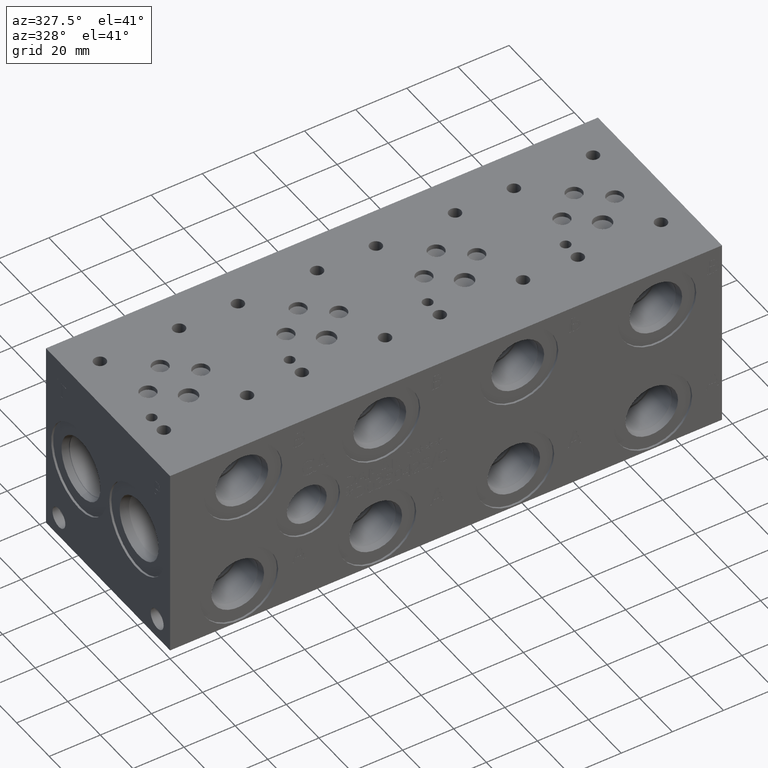
[diagram: clean part render]
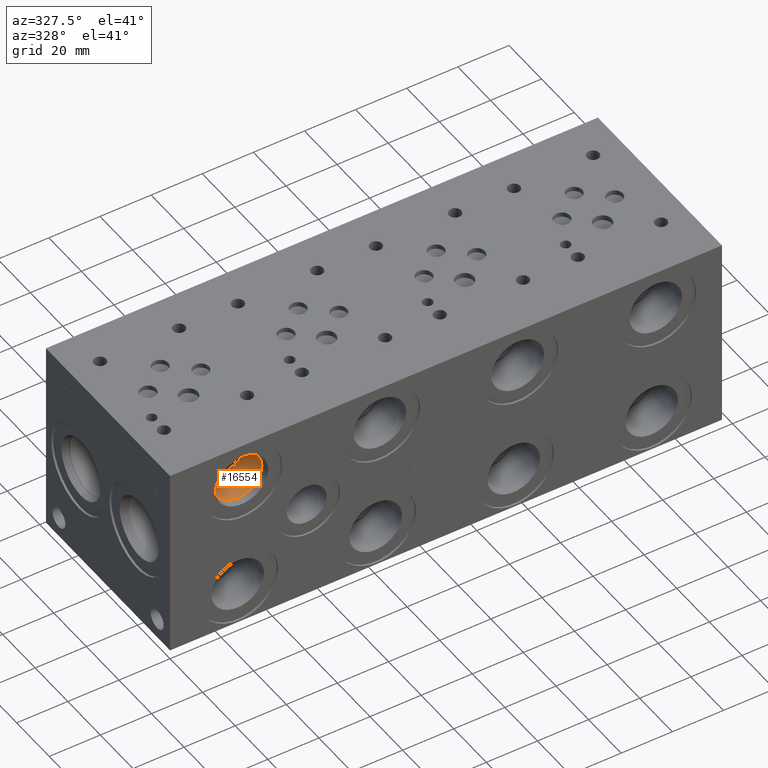
[diagram: same view with one face highlighted and labeled with its STEP entity id]
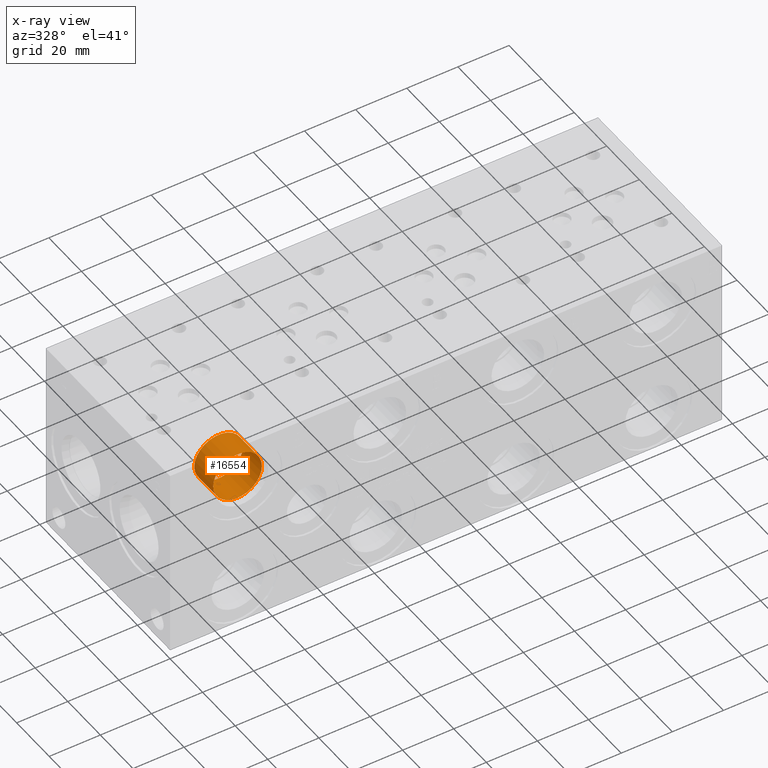
[diagram: x-ray of the same camera — body ghosted, the highlighted face saturated]
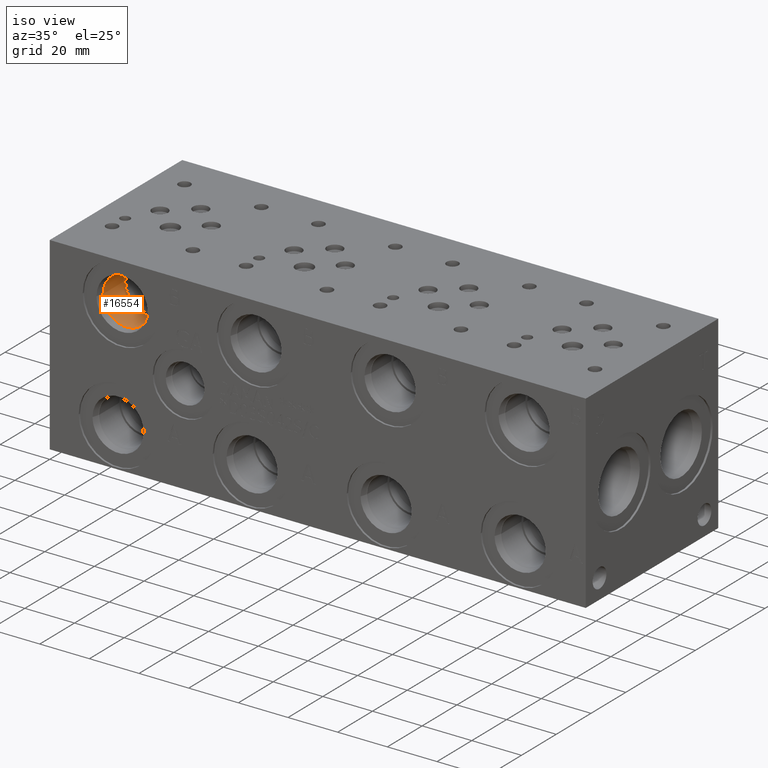
[diagram: same view with one face highlighted and labeled with its STEP entity id]
A machine part, auxiliary view. The second image highlights one B-rep face of the part: STEP entity #16554.
The next image is the same camera in x-ray: the body ghosted, the highlighted face saturated — about 0% of this face is hidden behind the body in this view.
A second angle (iso view) of the same face is appended — the face is thin or edge-on in the first view.
In plain terms, the highlighted cylindrical surface (bore or boss wall) has radius 9.525 mm, axis along (0, -1, 0).
Its self-contained STEP definition (entity closure, byte-faithful):
#156=CYLINDRICAL_SURFACE('',#17425,9.525);
#343=CIRCLE('',#17271,9.525);
#433=CIRCLE('',#17422,9.525);
#434=CIRCLE('',#17423,9.525);
#2194=FACE_OUTER_BOUND('',#3157,.T.);
#3157=EDGE_LOOP('',(#13886,#13887,#13888,#13889,#13890));
#4685=LINE('',#28145,#6110);
#6110=VECTOR('',#20524,9.525);
#7431=VERTEX_POINT('',#27838);
#7529=VERTEX_POINT('',#28138);
#7530=VERTEX_POINT('',#28139);
#9605=EDGE_CURVE('',#7431,#7431,#343,.T.);
#9745=EDGE_CURVE('',#7529,#7530,#433,.T.);
#9746=EDGE_CURVE('',#7530,#7529,#434,.T.);
#9748=EDGE_CURVE('',#7431,#7530,#4685,.T.);
#13886=ORIENTED_EDGE('',*,*,#9605,.T.);
#13887=ORIENTED_EDGE('',*,*,#9748,.T.);
#13888=ORIENTED_EDGE('',*,*,#9745,.F.);
#13889=ORIENTED_EDGE('',*,*,#9746,.F.);
#13890=ORIENTED_EDGE('',*,*,#9748,.F.);
#16554=ADVANCED_FACE('',(#2194),#156,.F.);
#17271=AXIS2_PLACEMENT_3D('',#27840,#20164,#20165);
#17422=AXIS2_PLACEMENT_3D('',#28140,#20516,#20517);
#17423=AXIS2_PLACEMENT_3D('',#28141,#20518,#20519);
#17425=AXIS2_PLACEMENT_3D('',#28144,#20522,#20523);
#20164=DIRECTION('center_axis',(0.,-1.,0.));
#20165=DIRECTION('ref_axis',(1.,0.,0.));
#20516=DIRECTION('center_axis',(0.,-1.,0.));
#20517=DIRECTION('ref_axis',(1.,0.,0.));
#20518=DIRECTION('center_axis',(0.,-1.,0.));
#20519=DIRECTION('ref_axis',(1.,0.,0.));
#20522=DIRECTION('center_axis',(0.,-1.,0.));
#20523=DIRECTION('ref_axis',(1.,0.,0.));
#20524=DIRECTION('',(0.,1.,0.));
#27838=CARTESIAN_POINT('',(19.05,3.4036,60.325));
#27840=CARTESIAN_POINT('Origin',(28.575,3.4036,60.325));
#28138=CARTESIAN_POINT('',(38.1,15.0622,60.325));
#28139=CARTESIAN_POINT('',(19.05,15.0622,60.325));
#28140=CARTESIAN_POINT('Origin',(28.575,15.0622,60.325));
#28141=CARTESIAN_POINT('Origin',(28.575,15.0622,60.325));
#28144=CARTESIAN_POINT('Origin',(28.575,7.5311,60.325));
#28145=CARTESIAN_POINT('',(19.05,7.5311,60.325));